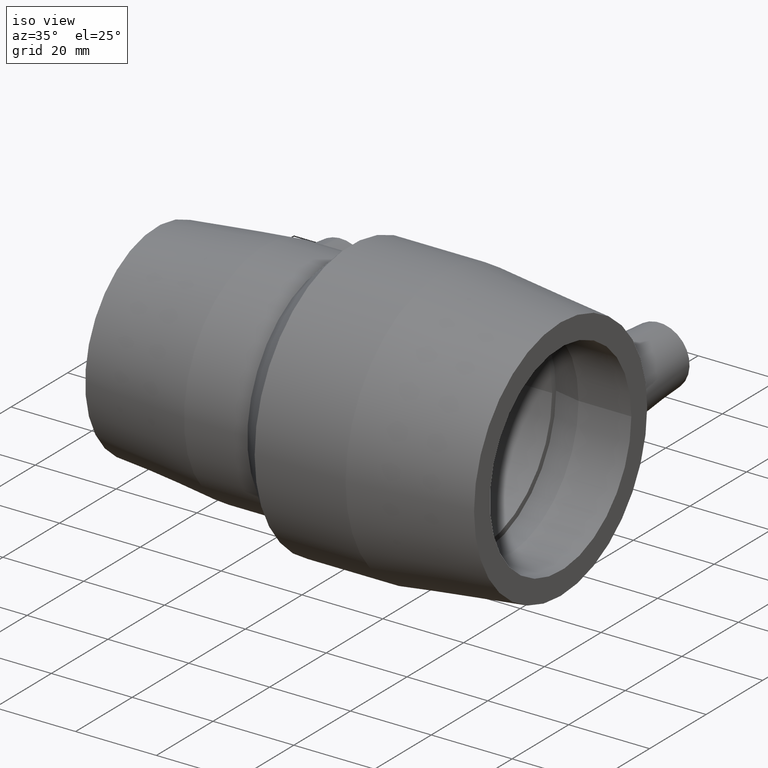
[diagram: clean part render]
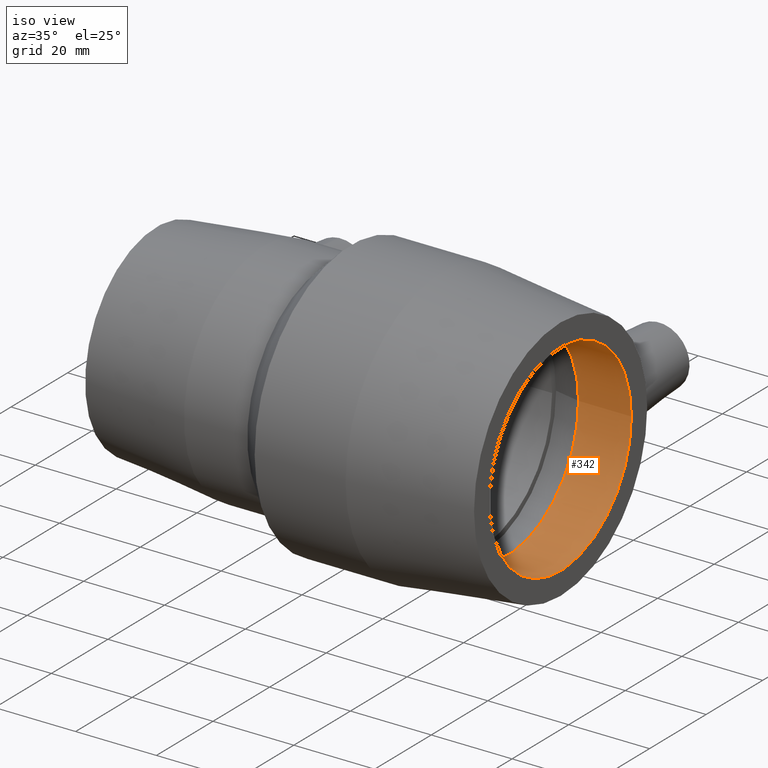
[diagram: same view with one face highlighted and labeled with its STEP entity id]
A machine part, iso view. The second image highlights one B-rep face of the part: STEP entity #342.
In plain terms, the highlighted cylindrical surface (bore or boss wall) has radius 25 mm, axis along (1, 0, 0).
Its self-contained STEP definition (entity closure, byte-faithful):
#41=FACE_BOUND('',#132,.T.);
#62=CYLINDRICAL_SURFACE('',#391,25.);
#84=FACE_OUTER_BOUND('',#131,.T.);
#131=EDGE_LOOP('',(#284));
#132=EDGE_LOOP('',(#285));
#175=CIRCLE('',#390,25.);
#176=CIRCLE('',#392,25.);
#206=VERTEX_POINT('',#658);
#207=VERTEX_POINT('',#661);
#237=EDGE_CURVE('',#206,#206,#175,.T.);
#238=EDGE_CURVE('',#207,#207,#176,.T.);
#284=ORIENTED_EDGE('',*,*,#238,.F.);
#285=ORIENTED_EDGE('',*,*,#237,.T.);
#342=ADVANCED_FACE('',(#84,#41),#62,.F.);
#390=AXIS2_PLACEMENT_3D('',#659,#484,#485);
#391=AXIS2_PLACEMENT_3D('',#660,#486,#487);
#392=AXIS2_PLACEMENT_3D('',#662,#488,#489);
#484=DIRECTION('center_axis',(1.,1.83697019872103E-16,0.));
#485=DIRECTION('ref_axis',(0.,0.,-1.));
#486=DIRECTION('center_axis',(1.,1.83697019872103E-16,0.));
#487=DIRECTION('ref_axis',(-1.68112701893672E-16,1.,0.));
#488=DIRECTION('center_axis',(1.,1.83697019872103E-16,0.));
#489=DIRECTION('ref_axis',(0.,0.,-1.));
#658=CARTESIAN_POINT('',(50.,25.,0.));
#659=CARTESIAN_POINT('Origin',(50.,1.83697019872103E-14,0.));
#660=CARTESIAN_POINT('Origin',(43.4666666666667,1.71695481240459E-14,0.));
#661=CARTESIAN_POINT('',(36.9333333333333,25.,0.));
#662=CARTESIAN_POINT('Origin',(36.9333333333333,1.59693942608815E-14,0.));